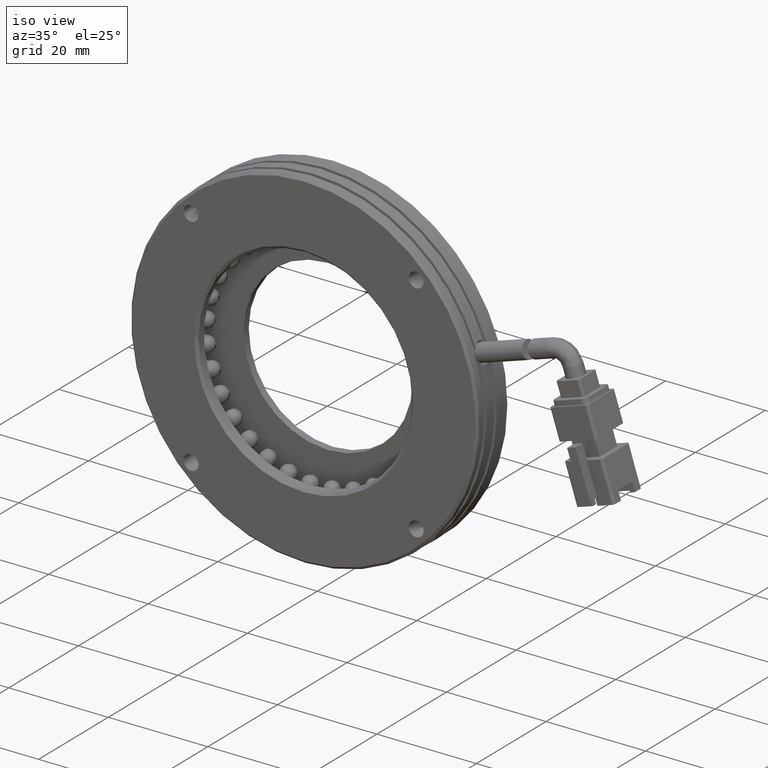
[diagram: clean part render]
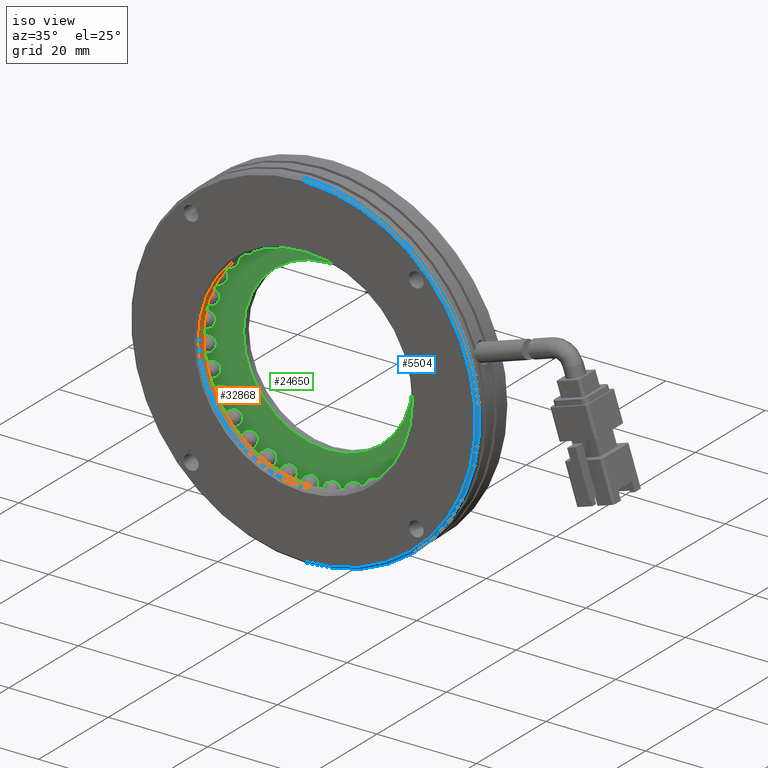
[diagram: same view with three faces highlighted in distinct colors, each labeled with its STEP entity id]
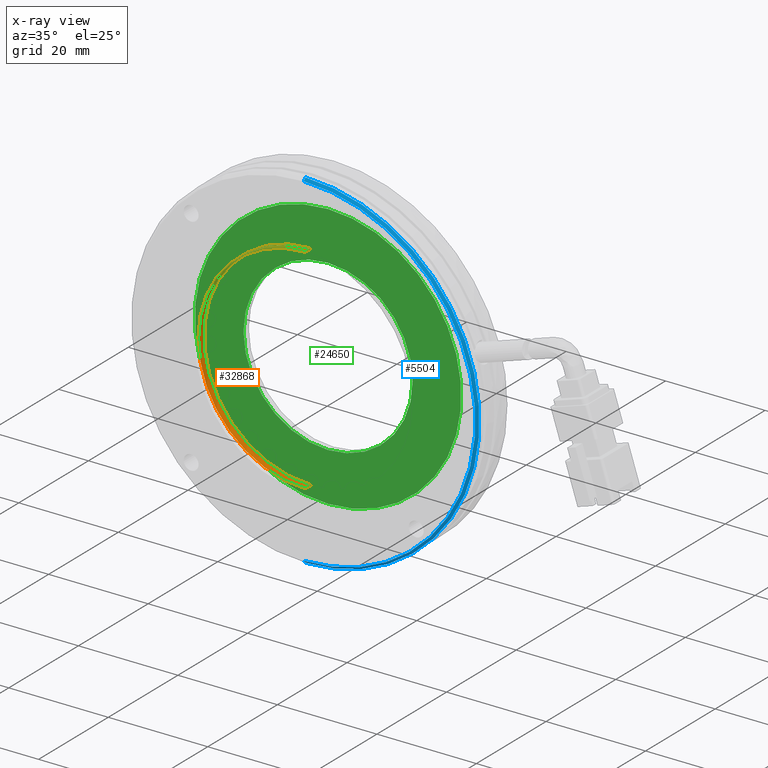
[diagram: x-ray of the same camera — body ghosted, the three highlighted faces saturated]
A machine part, iso view with three faces highlighted in distinct colors.
The next image is the same camera in x-ray (body ghosted, the three faces saturated) — at least one of them is partly hidden behind the body in this view.
Their STEP definitions:

[orange] entity #32868 — the highlighted cylindrical surface (partial cylindrical patch) has radius 21.5 mm, axis along (-0, -1, -0).
#79 = CIRCLE ( 'NONE', #584, 21.50000000000000000 ) ;
#584 = AXIS2_PLACEMENT_3D ( 'NONE', #27004, #8328, #30087 ) ;
#933 = VECTOR ( 'NONE', #14636, 1000.000000000000000 ) ;
#1846 = CARTESIAN_POINT ( 'NONE',  ( -5.709292144904565300, 4.760202915404257800, -21.50000000000000000 ) ) ;
#1891 = EDGE_CURVE ( 'NONE', #20083, #4703, #34036, .T. ) ;
#3115 = ORIENTED_EDGE ( 'NONE', *, *, #37830, .F. ) ;
#4703 = VERTEX_POINT ( 'NONE', #33708 ) ;
#4720 = CARTESIAN_POINT ( 'NONE',  ( -5.709292144904562600, 6.260202915404280000, 21.50000000000000000 ) ) ;
#5323 = EDGE_CURVE ( 'NONE', #25417, #34507, #11442, .T. ) ;
#8023 = AXIS2_PLACEMENT_3D ( 'NONE', #17292, #39079, #20429 ) ;
#8328 = DIRECTION ( 'NONE',  ( 0.0000000000000000000, -1.000000000000000000, 0.0000000000000000000 ) ) ;
#9565 = AXIS2_PLACEMENT_3D ( 'NONE', #13368, #32034, #10393 ) ;
#10393 = DIRECTION ( 'NONE',  ( 0.0000000000000000000, 0.0000000000000000000, -1.000000000000000000 ) ) ;
#11442 = CIRCLE ( 'NONE', #8023, 21.50000000000000000 ) ;
#13368 = CARTESIAN_POINT ( 'NONE',  ( -5.709292144904565300, -49.82318178258231000, 0.0000000000000000000 ) ) ;
#13630 = FACE_OUTER_BOUND ( 'NONE', #32719, .T. ) ;
#14636 = DIRECTION ( 'NONE',  ( -0.0000000000000000000, -1.000000000000000000, -0.0000000000000000000 ) ) ;
#14919 = VERTEX_POINT ( 'NONE', #32043 ) ;
#15962 = LINE ( 'NONE', #36590, #24271 ) ;
#16378 = ORIENTED_EDGE ( 'NONE', *, *, #35458, .T. ) ;
#17288 = CARTESIAN_POINT ( 'NONE',  ( -5.709292144904565300, 6.260202915404280000, 0.0000000000000000000 ) ) ;
#17292 = CARTESIAN_POINT ( 'NONE',  ( -5.709292144904565300, 4.760202915404257800, 0.0000000000000000000 ) ) ;
#17993 = CYLINDRICAL_SURFACE ( 'NONE', #9565, 21.50000000000000000 ) ;
#20083 = VERTEX_POINT ( 'NONE', #4720 ) ;
#20425 = DIRECTION ( 'NONE',  ( 0.0000000000000000000, 0.0000000000000000000, -1.000000000000000000 ) ) ;
#20429 = DIRECTION ( 'NONE',  ( 0.0000000000000000000, 0.0000000000000000000, -1.000000000000000000 ) ) ;
#21212 = DIRECTION ( 'NONE',  ( -0.0000000000000000000, -1.000000000000000000, -0.0000000000000000000 ) ) ;
#22110 = CARTESIAN_POINT ( 'NONE',  ( -5.709292144904562600, -49.82318178258231000, 21.50000000000000000 ) ) ;
#23886 = EDGE_CURVE ( 'NONE', #20083, #14919, #32905, .T. ) ;
#24271 = VECTOR ( 'NONE', #21212, 1000.000000000000000 ) ;
#25417 = VERTEX_POINT ( 'NONE', #34986 ) ;
#27004 = CARTESIAN_POINT ( 'NONE',  ( -5.709292144904565300, 4.760202915404257800, 0.0000000000000000000 ) ) ;
#27076 = ORIENTED_EDGE ( 'NONE', *, *, #23886, .F. ) ;
#27910 = ORIENTED_EDGE ( 'NONE', *, *, #5323, .T. ) ;
#30087 = DIRECTION ( 'NONE',  ( 0.0000000000000000000, 0.0000000000000000000, -1.000000000000000000 ) ) ;
#32034 = DIRECTION ( 'NONE',  ( -0.0000000000000000000, -1.000000000000000000, -0.0000000000000000000 ) ) ;
#32043 = CARTESIAN_POINT ( 'NONE',  ( -5.709292144904565300, 6.260202915404280000, -21.50000000000000000 ) ) ;
#32071 = AXIS2_PLACEMENT_3D ( 'NONE', #17288, #39076, #20425 ) ;
#32719 = EDGE_LOOP ( 'NONE', ( #27076, #34049, #16378, #27910, #3115 ) ) ;
#32868 = ADVANCED_FACE ( 'NONE', ( #13630 ), #17993, .F. ) ;
#32905 = CIRCLE ( 'NONE', #32071, 21.50000000000000000 ) ;
#33708 = CARTESIAN_POINT ( 'NONE',  ( -5.709292144904562600, 4.760202915404257800, 21.50000000000000000 ) ) ;
#34036 = LINE ( 'NONE', #22110, #933 ) ;
#34049 = ORIENTED_EDGE ( 'NONE', *, *, #1891, .T. ) ;
#34507 = VERTEX_POINT ( 'NONE', #1846 ) ;
#34986 = CARTESIAN_POINT ( 'NONE',  ( -27.20929214490456600, 4.760202915404257800, 2.663606788145493000E-015 ) ) ;
#35458 = EDGE_CURVE ( 'NONE', #4703, #25417, #79, .T. ) ;
#36590 = CARTESIAN_POINT ( 'NONE',  ( -5.709292144904565300, -49.82318178258231000, -21.50000000000000000 ) ) ;
#37830 = EDGE_CURVE ( 'NONE', #14919, #34507, #15962, .T. ) ;
#39076 = DIRECTION ( 'NONE',  ( -0.0000000000000000000, -1.000000000000000000, -0.0000000000000000000 ) ) ;
#39079 = DIRECTION ( 'NONE',  ( 0.0000000000000000000, -1.000000000000000000, 0.0000000000000000000 ) ) ;

[blue] entity #5504 — the highlighted conical surface has half-angle 45 deg.
#2188 = CONICAL_SURFACE ( 'NONE', #9304, 35.00000000000000000, 0.7853981633974482800 ) ;
#2774 = DIRECTION ( 'NONE',  ( 0.0000000000000000000, 0.0000000000000000000, 1.000000000000000000 ) ) ;
#3876 = CIRCLE ( 'NONE', #40078, 34.50000000000004300 ) ;
#4979 = CARTESIAN_POINT ( 'NONE',  ( -5.709292144904565300, 4.760202915404216000, -34.99999999999999300 ) ) ;
#5504 = ADVANCED_FACE ( 'NONE', ( #29908 ), #2188, .T. ) ;
#5638 = ORIENTED_EDGE ( 'NONE', *, *, #23469, .T. ) ;
#8102 = DIRECTION ( 'NONE',  ( -0.0000000000000000000, 1.000000000000000000, 0.0000000000000000000 ) ) ;
#8746 = VECTOR ( 'NONE', #38707, 1000.000000000000000 ) ;
#9304 = AXIS2_PLACEMENT_3D ( 'NONE', #14971, #30374, #36759 ) ;
#11858 = VERTEX_POINT ( 'NONE', #16048 ) ;
#13557 = CARTESIAN_POINT ( 'NONE',  ( -5.709292144904560800, 4.260202915404256900, -34.50000000000004300 ) ) ;
#14971 = CARTESIAN_POINT ( 'NONE',  ( -5.709292144904565300, 4.760202915404216000, 0.0000000000000000000 ) ) ;
#16048 = CARTESIAN_POINT ( 'NONE',  ( -5.709292144904560800, 4.760202915404216000, 34.99999999999999300 ) ) ;
#16657 = CARTESIAN_POINT ( 'NONE',  ( -5.709292144904560800, 4.760202915404216000, -35.00000000000000000 ) ) ;
#17285 = AXIS2_PLACEMENT_3D ( 'NONE', #39993, #21371, #2774 ) ;
#19060 = CIRCLE ( 'NONE', #17285, 34.99999999999999300 ) ;
#20333 = EDGE_LOOP ( 'NONE', ( #5638, #30358, #25601, #37452 ) ) ;
#21261 = VECTOR ( 'NONE', #36550, 1000.000000000000000 ) ;
#21371 = DIRECTION ( 'NONE',  ( -0.0000000000000000000, -1.000000000000000000, -0.0000000000000000000 ) ) ;
#23469 = EDGE_CURVE ( 'NONE', #32676, #39921, #3876, .T. ) ;
#25601 = ORIENTED_EDGE ( 'NONE', *, *, #31438, .T. ) ;
#26763 = CARTESIAN_POINT ( 'NONE',  ( -5.709292144904565300, 4.260202915404256900, 0.0000000000000000000 ) ) ;
#29532 = LINE ( 'NONE', #33438, #21261 ) ;
#29630 = EDGE_CURVE ( 'NONE', #32676, #11858, #29532, .T. ) ;
#29853 = DIRECTION ( 'NONE',  ( 0.0000000000000000000, 0.0000000000000000000, 1.000000000000000000 ) ) ;
#29908 = FACE_OUTER_BOUND ( 'NONE', #20333, .T. ) ;
#30358 = ORIENTED_EDGE ( 'NONE', *, *, #32417, .T. ) ;
#30374 = DIRECTION ( 'NONE',  ( -0.0000000000000000000, 1.000000000000000000, 0.0000000000000000000 ) ) ;
#31438 = EDGE_CURVE ( 'NONE', #36683, #11858, #19060, .T. ) ;
#32417 = EDGE_CURVE ( 'NONE', #39921, #36683, #33591, .T. ) ;
#32676 = VERTEX_POINT ( 'NONE', #36381 ) ;
#33438 = CARTESIAN_POINT ( 'NONE',  ( -5.709292144904565300, 4.760202915404216000, 35.00000000000000000 ) ) ;
#33591 = LINE ( 'NONE', #16657, #8746 ) ;
#36381 = CARTESIAN_POINT ( 'NONE',  ( -5.709292144904565300, 4.260202915404256900, 34.50000000000004300 ) ) ;
#36550 = DIRECTION ( 'NONE',  ( 0.0000000000000000000, 0.7071067811865475700, 0.7071067811865474600 ) ) ;
#36683 = VERTEX_POINT ( 'NONE', #4979 ) ;
#36759 = DIRECTION ( 'NONE',  ( 0.0000000000000000000, 0.0000000000000000000, 1.000000000000000000 ) ) ;
#37452 = ORIENTED_EDGE ( 'NONE', *, *, #29630, .F. ) ;
#38707 = DIRECTION ( 'NONE',  ( 8.659560562354931600E-017, 0.7071067811865475700, -0.7071067811865474600 ) ) ;
#39921 = VERTEX_POINT ( 'NONE', #13557 ) ;
#39993 = CARTESIAN_POINT ( 'NONE',  ( -5.709292144904565300, 4.760202915404216000, 0.0000000000000000000 ) ) ;
#40078 = AXIS2_PLACEMENT_3D ( 'NONE', #26763, #8102, #29853 ) ;

[green] entity #24650 — the highlighted planar face has unit normal (0, 1, 0).
#608 = EDGE_LOOP ( 'NONE', ( #2378, #2992 ) ) ;
#2374 = EDGE_CURVE ( 'NONE', #39780, #20441, #25973, .T. ) ;
#2378 = ORIENTED_EDGE ( 'NONE', *, *, #37890, .F. ) ;
#2992 = ORIENTED_EDGE ( 'NONE', *, *, #28571, .F. ) ;
#4159 = EDGE_LOOP ( 'NONE', ( #12095, #36094 ) ) ;
#4521 = VERTEX_POINT ( 'NONE', #29753 ) ;
#5739 = AXIS2_PLACEMENT_3D ( 'NONE', #24487, #5831, #27602 ) ;
#5831 = DIRECTION ( 'NONE',  ( 0.0000000000000000000, 1.000000000000000000, 0.0000000000000000000 ) ) ;
#10106 = CARTESIAN_POINT ( 'NONE',  ( -5.709292144904340600, 11.26020291540426400, 16.99999999999997900 ) ) ;
#11945 = PLANE ( 'NONE',  #5739 ) ;
#12095 = ORIENTED_EDGE ( 'NONE', *, *, #2374, .T. ) ;
#12485 = DIRECTION ( 'NONE',  ( 0.0000000000000000000, 1.000000000000000000, 0.0000000000000000000 ) ) ;
#12673 = CARTESIAN_POINT ( 'NONE',  ( -5.709292144904342300, 11.26020291540426400, -2.081668171172168500E-014 ) ) ;
#14957 = CARTESIAN_POINT ( 'NONE',  ( -5.709292144904342300, 11.26020291540426400, -2.081668171172168500E-014 ) ) ;
#15790 = DIRECTION ( 'NONE',  ( 0.0000000000000000000, 0.0000000000000000000, -1.000000000000000000 ) ) ;
#16258 = CARTESIAN_POINT ( 'NONE',  ( -5.709292144904338800, 11.26020291540426400, 26.79999999999997900 ) ) ;
#16891 = AXIS2_PLACEMENT_3D ( 'NONE', #31146, #12485, #34284 ) ;
#17404 = CIRCLE ( 'NONE', #39424, 17.00000000000000000 ) ;
#18082 = DIRECTION ( 'NONE',  ( 0.0000000000000000000, 0.0000000000000000000, -1.000000000000000000 ) ) ;
#20441 = VERTEX_POINT ( 'NONE', #10106 ) ;
#20762 = EDGE_CURVE ( 'NONE', #20441, #39780, #17404, .T. ) ;
#21658 = DIRECTION ( 'NONE',  ( 0.0000000000000000000, 0.0000000000000000000, -1.000000000000000000 ) ) ;
#21782 = DIRECTION ( 'NONE',  ( 0.0000000000000000000, 1.000000000000000000, 0.0000000000000000000 ) ) ;
#22052 = CARTESIAN_POINT ( 'NONE',  ( -5.709292144904342300, 11.26020291540426400, -2.081668171172168500E-014 ) ) ;
#23281 = VERTEX_POINT ( 'NONE', #16258 ) ;
#24473 = FACE_OUTER_BOUND ( 'NONE', #608, .T. ) ;
#24487 = CARTESIAN_POINT ( 'NONE',  ( -29.70929214490434600, 11.26020291540426400, -2.081668171172168500E-014 ) ) ;
#24650 = ADVANCED_FACE ( 'NONE', ( #24473, #25460 ), #11945, .F. ) ;
#25460 = FACE_BOUND ( 'NONE', #4159, .T. ) ;
#25973 = CIRCLE ( 'NONE', #31549, 17.00000000000000000 ) ;
#27602 = DIRECTION ( 'NONE',  ( 0.0000000000000000000, -0.0000000000000000000, 1.000000000000000000 ) ) ;
#28571 = EDGE_CURVE ( 'NONE', #23281, #4521, #36526, .T. ) ;
#29753 = CARTESIAN_POINT ( 'NONE',  ( -5.709292144904342300, 11.26020291540426400, -26.80000000000002200 ) ) ;
#31146 = CARTESIAN_POINT ( 'NONE',  ( -5.709292144904342300, 11.26020291540426400, -2.081668171172168500E-014 ) ) ;
#31544 = CARTESIAN_POINT ( 'NONE',  ( -5.709292144904342300, 11.26020291540426400, -17.00000000000002100 ) ) ;
#31549 = AXIS2_PLACEMENT_3D ( 'NONE', #22052, #21782, #21658 ) ;
#33033 = CIRCLE ( 'NONE', #16891, 26.80000000000000100 ) ;
#34284 = DIRECTION ( 'NONE',  ( 0.0000000000000000000, 0.0000000000000000000, -1.000000000000000000 ) ) ;
#34458 = DIRECTION ( 'NONE',  ( 0.0000000000000000000, 1.000000000000000000, 0.0000000000000000000 ) ) ;
#36094 = ORIENTED_EDGE ( 'NONE', *, *, #20762, .T. ) ;
#36526 = CIRCLE ( 'NONE', #39033, 26.80000000000000100 ) ;
#36742 = DIRECTION ( 'NONE',  ( 0.0000000000000000000, 1.000000000000000000, 0.0000000000000000000 ) ) ;
#37890 = EDGE_CURVE ( 'NONE', #4521, #23281, #33033, .T. ) ;
#39033 = AXIS2_PLACEMENT_3D ( 'NONE', #12673, #34458, #15790 ) ;
#39424 = AXIS2_PLACEMENT_3D ( 'NONE', #14957, #36742, #18082 ) ;
#39780 = VERTEX_POINT ( 'NONE', #31544 ) ;